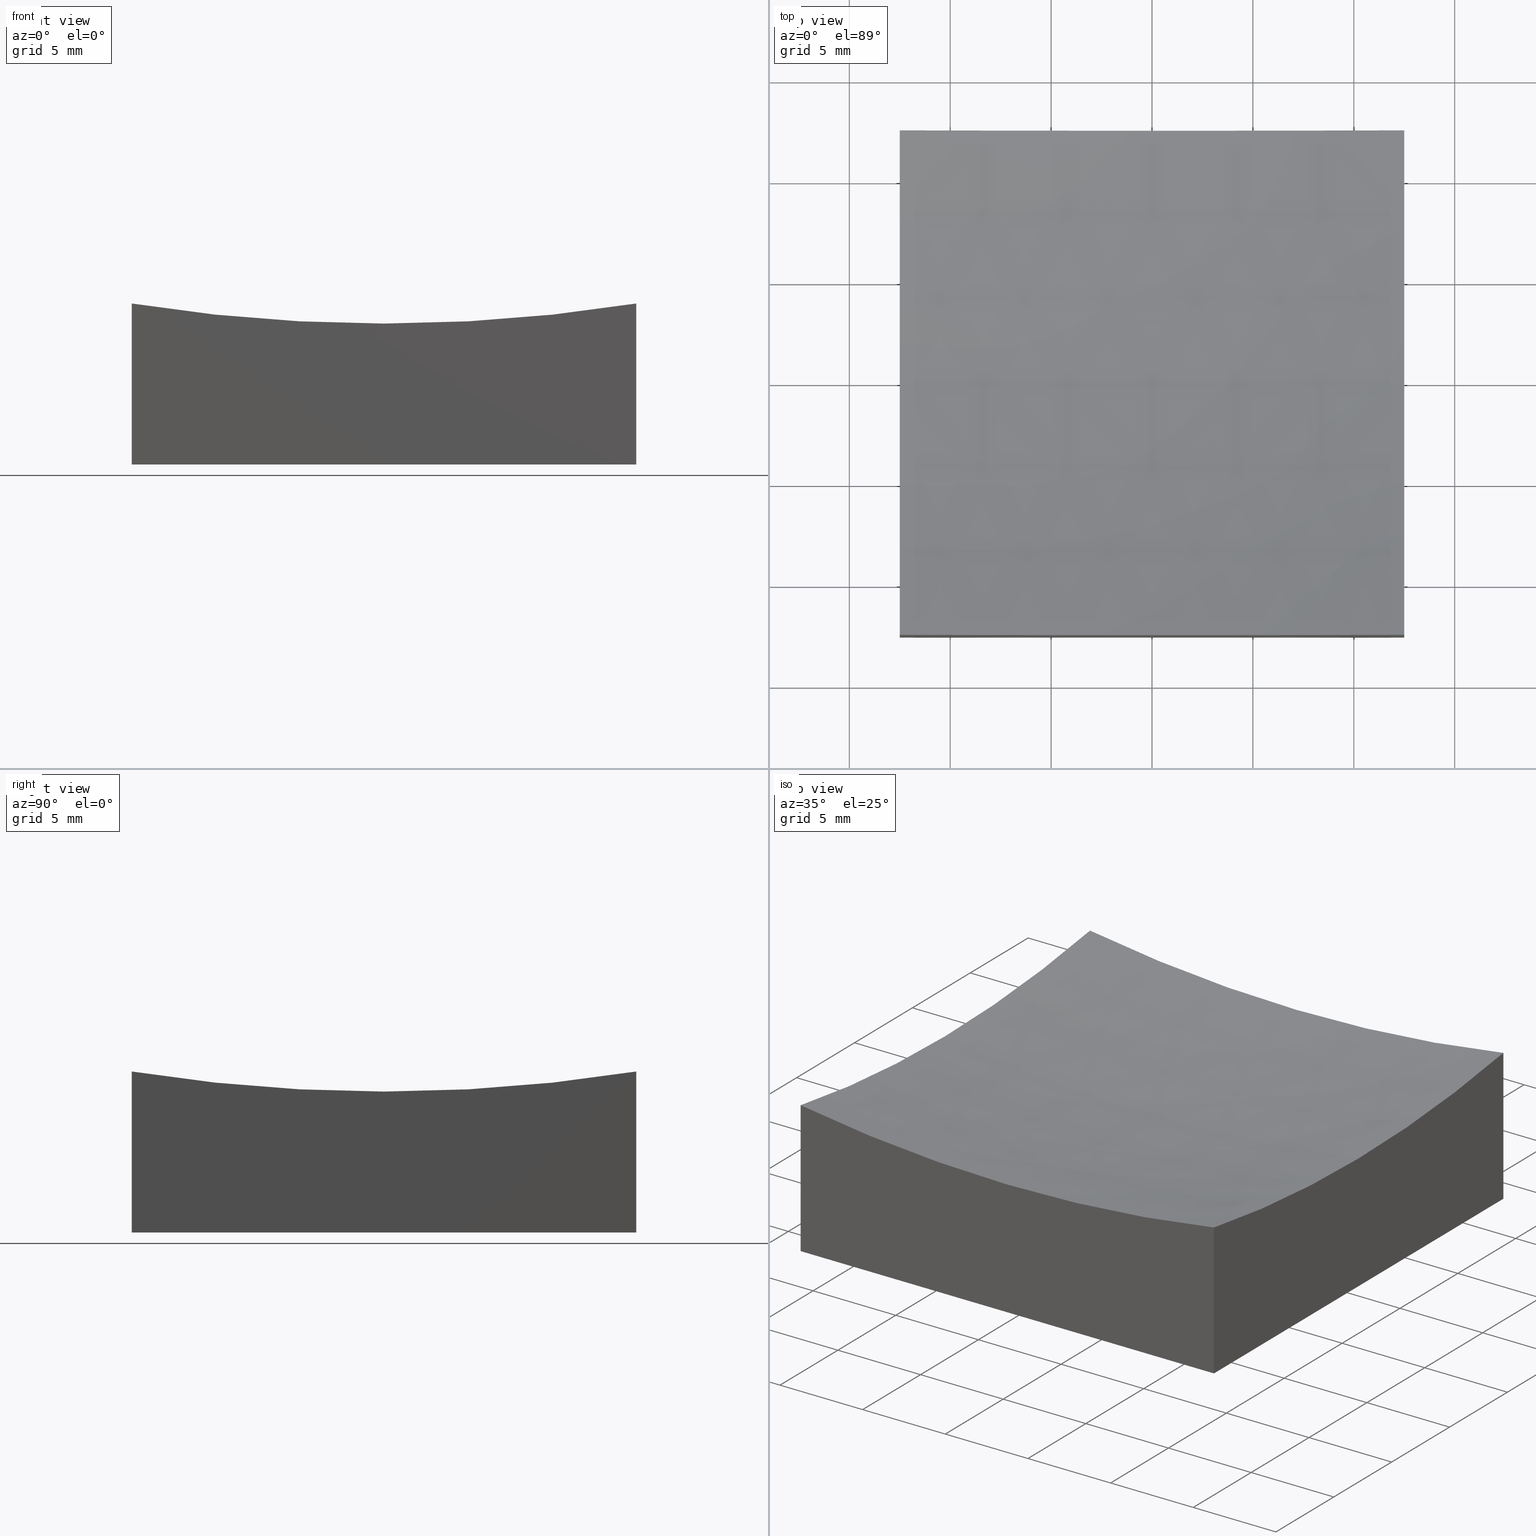
[diagram: canonical four-view strip — front | top / right | iso, engineering-drawing reading convention]
A machine part, canonical four-view strip (front | top / right | iso — engineering-drawing reading convention). The complete STEP part file that produces these views, byte-faithful:
ISO-10303-21;
HEADER;
FILE_DESCRIPTION (( 'STEP AP214' ),
    '1' );
FILE_NAME ('270035.STEP',
    '2020-06-05T06:09:34',
    ( '' ),
    ( '' ),
    'SwSTEP 2.0',
    'SolidWorks 2019',
    '' );
FILE_SCHEMA (( 'AUTOMOTIVE_DESIGN' ));
ENDSEC;

DATA;
#1 = DIRECTION ( 'NONE',  ( 1.000000000000000000, 0.0000000000000000000, 0.0000000000000000000 ) ) ;
#2 = ORIENTED_EDGE ( 'NONE', *, *, #121, .F. ) ;
#3 = ORIENTED_EDGE ( 'NONE', *, *, #33, .T. ) ;
#4 =( NAMED_UNIT ( * ) SI_UNIT ( $, .STERADIAN. ) SOLID_ANGLE_UNIT ( ) );
#5 = CARTESIAN_POINT ( 'NONE',  ( -12.50000000000000000, 12.50000000000000000, 20.00000000000000000 ) ) ;
#6 = EDGE_CURVE ( 'NONE', #189, #131, #78, .T. ) ;
#7 = CARTESIAN_POINT ( 'NONE',  ( -12.49999999999999822, -1.734723475976808278E-15, 86.00000000000000000 ) ) ;
#8 = LINE ( 'NONE', #94, #90 ) ;
#9 = AXIS2_PLACEMENT_3D ( 'NONE', #143, #224, #222 ) ;
#10 =( NAMED_UNIT ( * ) SI_UNIT ( $, .STERADIAN. ) SOLID_ANGLE_UNIT ( ) );
#11 = SPHERICAL_SURFACE ( 'NONE', #173, 80.00000000000001421 ) ;
#12 = SURFACE_SIDE_STYLE ('',( #185 ) ) ;
#13 = AXIS2_PLACEMENT_3D ( 'NONE', #113, #102, #17 ) ;
#14 = ADVANCED_BREP_SHAPE_REPRESENTATION ( '270035', ( #247, #67 ), #248 ) ;
#15 = ADVANCED_FACE ( 'NONE', ( #104 ), #62, .F. ) ;
#16 = ORIENTED_EDGE ( 'NONE', *, *, #142, .T. ) ;
#17 = DIRECTION ( 'NONE',  ( 0.0000000000000000000, 0.0000000000000000000, -1.000000000000000000 ) ) ;
#18 = ORIENTED_EDGE ( 'NONE', *, *, #180, .T. ) ;
#19 = VERTEX_POINT ( 'NONE', #85 ) ;
#20 = VECTOR ( 'NONE', #212, 1000.000000000000000 ) ;
#21 = SURFACE_STYLE_FILL_AREA ( #84 ) ;
#22 = ORIENTED_EDGE ( 'NONE', *, *, #214, .F. ) ;
#23 = DIRECTION ( 'NONE',  ( 1.000000000000000000, 0.0000000000000000000, 0.0000000000000000000 ) ) ;
#24 = DIRECTION ( 'NONE',  ( 0.0000000000000000000, 1.000000000000000000, 0.0000000000000000000 ) ) ;
#25 = STYLED_ITEM ( 'NONE', ( #178 ), #14 ) ;
#26 =( NAMED_UNIT ( * ) PLANE_ANGLE_UNIT ( ) SI_UNIT ( $, .RADIAN. ) );
#27 = DIRECTION ( 'NONE',  ( -1.317221326114363248E-16, 1.000000000000000000, 0.0000000000000000000 ) ) ;
#28 = PLANE ( 'NONE',  #160 ) ;
#29 = VECTOR ( 'NONE', #120, 1000.000000000000000 ) ;
#30 = DIRECTION ( 'NONE',  ( -0.0000000000000000000, -0.0000000000000000000, -1.000000000000000000 ) ) ;
#31 = CARTESIAN_POINT ( 'NONE',  ( 1.053196247266724167E-14, 0.0000000000000000000, 86.00000000000000000 ) ) ;
#32 = AXIS2_PLACEMENT_3D ( 'NONE', #200, #221, #27 ) ;
#33 = EDGE_CURVE ( 'NONE', #154, #36, #53, .T. ) ;
#34 = AXIS2_PLACEMENT_3D ( 'NONE', #89, #92, #147 ) ;
#35 = VECTOR ( 'NONE', #23, 1000.000000000000000 ) ;
#36 = VERTEX_POINT ( 'NONE', #162 ) ;
#37 = CARTESIAN_POINT ( 'NONE',  ( 1.053196247266724167E-14, -12.50000000000000000, 86.00000000000000000 ) ) ;
#38 = EDGE_CURVE ( 'NONE', #249, #189, #205, .T. ) ;
#39 = ORIENTED_EDGE ( 'NONE', *, *, #95, .T. ) ;
#40 = LINE ( 'NONE', #5, #111 ) ;
#41 = LINE ( 'NONE', #231, #35 ) ;
#42 = ORIENTED_EDGE ( 'NONE', *, *, #50, .T. ) ;
#43 = DIRECTION ( 'NONE',  ( 1.387778780781445676E-16, -1.000000000000000000, 0.0000000000000000000 ) ) ;
#44 = EDGE_CURVE ( 'NONE', #19, #77, #182, .T. ) ;
#45 = PRESENTATION_STYLE_ASSIGNMENT (( #218 ) ) ;
#46 = CARTESIAN_POINT ( 'NONE',  ( 12.50000000000000178, 0.0000000000000000000, 6.982596853604452036 ) ) ;
#47 = FACE_OUTER_BOUND ( 'NONE', #75, .T. ) ;
#48 = PRESENTATION_LAYER_ASSIGNMENT (  '', '', ( #105 ) ) ;
#49 = CARTESIAN_POINT ( 'NONE',  ( -12.49999999999999645, -12.50000000000000000, 0.0000000000000000000 ) ) ;
#50 = EDGE_CURVE ( 'NONE', #110, #98, #40, .T. ) ;
#51 = UNCERTAINTY_MEASURE_WITH_UNIT (LENGTH_MEASURE( 1.000000000000000082E-05 ), #122, 'distance_accuracy_value', 'NONE');
#52 = ORIENTED_EDGE ( 'NONE', *, *, #187, .F. ) ;
#53 = CIRCLE ( 'NONE', #252, 79.01740314639556573 ) ;
#54 = ORIENTED_EDGE ( 'NONE', *, *, #6, .T. ) ;
#55 = ORIENTED_EDGE ( 'NONE', *, *, #33, .F. ) ;
#56 = MECHANICAL_DESIGN_GEOMETRIC_PRESENTATION_REPRESENTATION (  '', ( #25 ), #91 ) ;
#57 = EDGE_LOOP ( 'NONE', ( #156, #174, #54, #209, #112 ) ) ;
#58 = CARTESIAN_POINT ( 'NONE',  ( 12.50000000000000000, 12.50000000000000000, 7.977567328363813104 ) ) ;
#59 = PRODUCT ( '270035', '270035', '', ( #153 ) ) ;
#60 = ORIENTED_EDGE ( 'NONE', *, *, #187, .T. ) ;
#61 = DIRECTION ( 'NONE',  ( 0.0000000000000000000, 1.000000000000000000, 0.0000000000000000000 ) ) ;
#62 = PLANE ( 'NONE',  #164 ) ;
#63 = ORIENTED_EDGE ( 'NONE', *, *, #121, .T. ) ;
#64 = FACE_OUTER_BOUND ( 'NONE', #152, .T. ) ;
#65 = DIRECTION ( 'NONE',  ( 1.000000000000000000, 0.0000000000000000000, -1.734723475976806848E-16 ) ) ;
#66 = MECHANICAL_DESIGN_GEOMETRIC_PRESENTATION_REPRESENTATION (  '', ( #105 ), #74 ) ;
#67 = AXIS2_PLACEMENT_3D ( 'NONE', #236, #103, #1 ) ;
#68 = CARTESIAN_POINT ( 'NONE',  ( 12.50000000000000355, -12.50000000000000000, 7.977567328363813104 ) ) ;
#69 =( NAMED_UNIT ( * ) PLANE_ANGLE_UNIT ( ) SI_UNIT ( $, .RADIAN. ) );
#70 = LINE ( 'NONE', #165, #226 ) ;
#71 = AXIS2_PLACEMENT_3D ( 'NONE', #243, #144, #166 ) ;
#72 = ORIENTED_EDGE ( 'NONE', *, *, #196, .T. ) ;
#73 = EDGE_CURVE ( 'NONE', #249, #114, #150, .T. ) ;
#74 =( GEOMETRIC_REPRESENTATION_CONTEXT ( 3 ) GLOBAL_UNCERTAINTY_ASSIGNED_CONTEXT ( ( #51 ) ) GLOBAL_UNIT_ASSIGNED_CONTEXT ( ( #122, #26, #10 ) ) REPRESENTATION_CONTEXT ( 'NONE', 'WORKASPACE' ) );
#75 = EDGE_LOOP ( 'NONE', ( #207, #76, #172, #228 ) ) ;
#76 = ORIENTED_EDGE ( 'NONE', *, *, #44, .T. ) ;
#77 = VERTEX_POINT ( 'NONE', #139 ) ;
#78 = CIRCLE ( 'NONE', #123, 79.01740314639556573 ) ;
#79 = CARTESIAN_POINT ( 'NONE',  ( 1.053196247266724167E-14, 0.0000000000000000000, 86.00000000000000000 ) ) ;
#80 = APPLICATION_PROTOCOL_DEFINITION ( 'draft international standard', 'automotive_design', 1998, #168 ) ;
#81 = EDGE_LOOP ( 'NONE', ( #52, #18, #16, #42, #72 ) ) ;
#82 = CARTESIAN_POINT ( 'NONE',  ( -12.50000000000000000, 12.50000000000000000, 0.0000000000000000000 ) ) ;
#83 = DIRECTION ( 'NONE',  ( 1.000000000000000000, 1.387778780781445676E-16, -0.0000000000000000000 ) ) ;
#84 = FILL_AREA_STYLE ('',( #101 ) ) ;
#85 = CARTESIAN_POINT ( 'NONE',  ( 12.50000000000000000, 12.50000000000000000, 0.0000000000000000000 ) ) ;
#86 = CARTESIAN_POINT ( 'NONE',  ( -12.50000000000000000, 12.50000000000000000, 20.00000000000000000 ) ) ;
#87 = CARTESIAN_POINT ( 'NONE',  ( 3.458540119970568356E-15, 0.0000000000000000000, 5.999999999999991118 ) ) ;
#88 = EDGE_CURVE ( 'NONE', #98, #19, #240, .T. ) ;
#89 = CARTESIAN_POINT ( 'NONE',  ( 12.50000000000000178, 1.734723475976805911E-15, 86.00000000000000000 ) ) ;
#90 = VECTOR ( 'NONE', #30, 1000.000000000000000 ) ;
#91 =( GEOMETRIC_REPRESENTATION_CONTEXT ( 3 ) GLOBAL_UNCERTAINTY_ASSIGNED_CONTEXT ( ( #204 ) ) GLOBAL_UNIT_ASSIGNED_CONTEXT ( ( #176, #118, #4 ) ) REPRESENTATION_CONTEXT ( 'NONE', 'WORKASPACE' ) );
#92 = DIRECTION ( 'NONE',  ( 1.000000000000000000, 1.387778780781445676E-16, -0.0000000000000000000 ) ) ;
#93 = ADVANCED_FACE ( 'NONE', ( #197 ), #157, .F. ) ;
#94 = CARTESIAN_POINT ( 'NONE',  ( -12.49999999999999645, -12.50000000000000000, 20.00000000000000000 ) ) ;
#95 = EDGE_CURVE ( 'NONE', #131, #19, #99, .T. ) ;
#96 = EDGE_LOOP ( 'NONE', ( #22, #63, #133, #141, #171 ) ) ;
#97 = DIRECTION ( 'NONE',  ( -1.317221326114363248E-16, 1.000000000000000000, 0.0000000000000000000 ) ) ;
#98 = VERTEX_POINT ( 'NONE', #215 ) ;
#99 = LINE ( 'NONE', #192, #109 ) ;
#100 = CARTESIAN_POINT ( 'NONE',  ( 12.50000000000000000, 12.50000000000000000, 0.0000000000000000000 ) ) ;
#101 = FILL_AREA_STYLE_COLOUR ( '', #132 ) ;
#102 = DIRECTION ( 'NONE',  ( 0.0000000000000000000, -1.000000000000000000, -0.0000000000000000000 ) ) ;
#103 = DIRECTION ( 'NONE',  ( 0.0000000000000000000, 0.0000000000000000000, 1.000000000000000000 ) ) ;
#104 = FACE_OUTER_BOUND ( 'NONE', #81, .T. ) ;
#105 = STYLED_ITEM ( 'NONE', ( #45 ), #247 ) ;
#106 = DIRECTION ( 'NONE',  ( 1.000000000000000000, 1.387778780781445676E-16, -0.0000000000000000000 ) ) ;
#107 = FACE_OUTER_BOUND ( 'NONE', #57, .T. ) ;
#108 = FILL_AREA_STYLE ('',( #183 ) ) ;
#109 = VECTOR ( 'NONE', #238, 1000.000000000000000 ) ;
#110 = VERTEX_POINT ( 'NONE', #119 ) ;
#111 = VECTOR ( 'NONE', #234, 1000.000000000000000 ) ;
#112 = ORIENTED_EDGE ( 'NONE', *, *, #142, .F. ) ;
#113 = CARTESIAN_POINT ( 'NONE',  ( 1.053196247266724167E-14, 0.0000000000000000000, 86.00000000000000000 ) ) ;
#114 = VERTEX_POINT ( 'NONE', #161 ) ;
#115 = CARTESIAN_POINT ( 'NONE',  ( -12.50000000000000000, 12.50000000000000000, 20.00000000000000000 ) ) ;
#116 = CIRCLE ( 'NONE', #9, 79.01740314639556573 ) ;
#117 = DIRECTION ( 'NONE',  ( 0.0000000000000000000, 1.000000000000000000, 0.0000000000000000000 ) ) ;
#118 =( NAMED_UNIT ( * ) PLANE_ANGLE_UNIT ( ) SI_UNIT ( $, .RADIAN. ) );
#119 = CARTESIAN_POINT ( 'NONE',  ( -12.50000000000000000, 12.50000000000000000, 7.977567328363813104 ) ) ;
#120 = DIRECTION ( 'NONE',  ( 1.000000000000000000, 0.0000000000000000000, 0.0000000000000000000 ) ) ;
#121 = EDGE_CURVE ( 'NONE', #154, #77, #134, .T. ) ;
#122 =( LENGTH_UNIT ( ) NAMED_UNIT ( * ) SI_UNIT ( .MILLI., .METRE. ) );
#123 = AXIS2_PLACEMENT_3D ( 'NONE', #217, #251, #97 ) ;
#124 = FACE_OUTER_BOUND ( 'NONE', #96, .T. ) ;
#125 = CARTESIAN_POINT ( 'NONE',  ( 0.0000000000000000000, 0.0000000000000000000, 0.0000000000000000000 ) ) ;
#126 = PLANE ( 'NONE',  #206 ) ;
#127 = CLOSED_SHELL ( 'NONE', ( #93, #151, #15, #184, #241, #235, #188 ) ) ;
#128 = DIRECTION ( 'NONE',  ( 0.0000000000000000000, 0.0000000000000000000, -1.000000000000000000 ) ) ;
#129 = EDGE_CURVE ( 'NONE', #233, #77, #41, .T. ) ;
#130 = ORIENTED_EDGE ( 'NONE', *, *, #180, .F. ) ;
#131 = VERTEX_POINT ( 'NONE', #58 ) ;
#132 = COLOUR_RGB ( '',1.000000000000000000, 1.000000000000000000, 1.000000000000000000 ) ;
#133 = ORIENTED_EDGE ( 'NONE', *, *, #44, .F. ) ;
#134 = LINE ( 'NONE', #175, #20 ) ;
#135 = EDGE_LOOP ( 'NONE', ( #169, #39, #229, #211 ) ) ;
#136 = DIRECTION ( 'NONE',  ( 1.000000000000000000, 1.387778780781445676E-16, -0.0000000000000000000 ) ) ;
#137 = EDGE_LOOP ( 'NONE', ( #250, #170, #130, #55, #191 ) ) ;
#138 = DIRECTION ( 'NONE',  ( 1.000000000000000000, 0.0000000000000000000, -1.734723475976806848E-16 ) ) ;
#139 = CARTESIAN_POINT ( 'NONE',  ( 12.50000000000000355, -12.50000000000000000, 0.0000000000000000000 ) ) ;
#140 = SHAPE_DEFINITION_REPRESENTATION ( #242, #14 ) ;
#141 = ORIENTED_EDGE ( 'NONE', *, *, #95, .F. ) ;
#142 = EDGE_CURVE ( 'NONE', #114, #110, #145, .T. ) ;
#143 = CARTESIAN_POINT ( 'NONE',  ( 1.053196247266724167E-14, 12.50000000000000000, 86.00000000000000000 ) ) ;
#144 = DIRECTION ( 'NONE',  ( 0.0000000000000000000, 1.000000000000000000, 0.0000000000000000000 ) ) ;
#145 = CIRCLE ( 'NONE', #181, 79.01740314639556573 ) ;
#146 = DIRECTION ( 'NONE',  ( -1.000000000000000000, 0.0000000000000000000, -0.0000000000000000000 ) ) ;
#147 = DIRECTION ( 'NONE',  ( -1.317221326114363248E-16, 1.000000000000000000, 0.0000000000000000000 ) ) ;
#148 = AXIS2_PLACEMENT_3D ( 'NONE', #158, #24, #138 ) ;
#149 = UNCERTAINTY_MEASURE_WITH_UNIT (LENGTH_MEASURE( 1.000000000000000082E-05 ), #163, 'distance_accuracy_value', 'NONE');
#150 = CIRCLE ( 'NONE', #220, 80.00000000000001421 ) ;
#151 = ADVANCED_FACE ( 'NONE', ( #179 ), #239, .T. ) ;
#152 = EDGE_LOOP ( 'NONE', ( #2, #3, #60, #230 ) ) ;
#153 = PRODUCT_CONTEXT ( 'NONE', #168, 'mechanical' ) ;
#154 = VERTEX_POINT ( 'NONE', #68 ) ;
#155 = PRODUCT_DEFINITION ( 'δ֪', '', #227, #246 ) ;
#156 = ORIENTED_EDGE ( 'NONE', *, *, #73, .F. ) ;
#157 = SPHERICAL_SURFACE ( 'NONE', #148, 80.00000000000001421 ) ;
#158 = CARTESIAN_POINT ( 'NONE',  ( 1.053196247266724167E-14, 0.0000000000000000000, 86.00000000000000000 ) ) ;
#159 =( NAMED_UNIT ( * ) SI_UNIT ( $, .STERADIAN. ) SOLID_ANGLE_UNIT ( ) );
#160 = AXIS2_PLACEMENT_3D ( 'NONE', #202, #106, #199 ) ;
#161 = CARTESIAN_POINT ( 'NONE',  ( -12.49999999999999645, 1.530808498934191127E-15, 6.982596853604452036 ) ) ;
#162 = CARTESIAN_POINT ( 'NONE',  ( -12.49999999999999645, -12.50000000000000000, 7.977567328363813104 ) ) ;
#163 =( LENGTH_UNIT ( ) NAMED_UNIT ( * ) SI_UNIT ( .MILLI., .METRE. ) );
#164 = AXIS2_PLACEMENT_3D ( 'NONE', #115, #83, #195 ) ;
#165 = CARTESIAN_POINT ( 'NONE',  ( -12.50000000000000000, 12.50000000000000000, 0.0000000000000000000 ) ) ;
#166 = DIRECTION ( 'NONE',  ( 0.0000000000000000000, -0.0000000000000000000, 1.000000000000000000 ) ) ;
#167 = PRESENTATION_LAYER_ASSIGNMENT (  '', '', ( #25 ) ) ;
#168 = APPLICATION_CONTEXT ( 'automotive_design' ) ;
#169 = ORIENTED_EDGE ( 'NONE', *, *, #219, .F. ) ;
#170 = ORIENTED_EDGE ( 'NONE', *, *, #73, .T. ) ;
#171 = ORIENTED_EDGE ( 'NONE', *, *, #6, .F. ) ;
#172 = ORIENTED_EDGE ( 'NONE', *, *, #129, .F. ) ;
#173 = AXIS2_PLACEMENT_3D ( 'NONE', #31, #223, #65 ) ;
#174 = ORIENTED_EDGE ( 'NONE', *, *, #38, .T. ) ;
#175 = CARTESIAN_POINT ( 'NONE',  ( 12.50000000000000355, -12.50000000000000000, 20.00000000000000000 ) ) ;
#176 =( LENGTH_UNIT ( ) NAMED_UNIT ( * ) SI_UNIT ( .MILLI., .METRE. ) );
#177 = DIRECTION ( 'NONE',  ( -1.000000000000000000, 1.224646799147353207E-16, 0.0000000000000000000 ) ) ;
#178 = PRESENTATION_STYLE_ASSIGNMENT (( #216 ) ) ;
#179 = FACE_OUTER_BOUND ( 'NONE', #135, .T. ) ;
#180 = EDGE_CURVE ( 'NONE', #36, #114, #193, .T. ) ;
#181 = AXIS2_PLACEMENT_3D ( 'NONE', #7, #136, #210 ) ;
#182 = LINE ( 'NONE', #100, #225 ) ;
#183 = FILL_AREA_STYLE_COLOUR ( '', #213 ) ;
#184 = ADVANCED_FACE ( 'NONE', ( #64 ), #245, .F. ) ;
#185 = SURFACE_STYLE_FILL_AREA ( #108 ) ;
#186 = APPLICATION_CONTEXT ( 'automotive_design' ) ;
#187 = EDGE_CURVE ( 'NONE', #36, #233, #8, .T. ) ;
#188 = ADVANCED_FACE ( 'NONE', ( #107 ), #11, .F. ) ;
#189 = VERTEX_POINT ( 'NONE', #46 ) ;
#190 = DIRECTION ( 'NONE',  ( 1.224646799147353207E-16, 1.000000000000000000, -1.832685396736843925E-32 ) ) ;
#191 = ORIENTED_EDGE ( 'NONE', *, *, #214, .T. ) ;
#192 = CARTESIAN_POINT ( 'NONE',  ( 12.50000000000000000, 12.50000000000000000, 20.00000000000000000 ) ) ;
#193 = CIRCLE ( 'NONE', #32, 79.01740314639556573 ) ;
#194 = DIRECTION ( 'NONE',  ( 0.0000000000000000000, -0.0000000000000000000, 1.000000000000000000 ) ) ;
#195 = DIRECTION ( 'NONE',  ( -1.387778780781445676E-16, 1.000000000000000000, 0.0000000000000000000 ) ) ;
#196 = EDGE_CURVE ( 'NONE', #98, #233, #70, .T. ) ;
#197 = FACE_OUTER_BOUND ( 'NONE', #137, .T. ) ;
#198 = AXIS2_PLACEMENT_3D ( 'NONE', #86, #117, #194 ) ;
#199 = DIRECTION ( 'NONE',  ( -1.387778780781445676E-16, 1.000000000000000000, 0.0000000000000000000 ) ) ;
#200 = CARTESIAN_POINT ( 'NONE',  ( -12.49999999999999822, -1.734723475976808278E-15, 86.00000000000000000 ) ) ;
#201 = CIRCLE ( 'NONE', #34, 79.01740314639556573 ) ;
#202 = CARTESIAN_POINT ( 'NONE',  ( 12.50000000000000000, 12.50000000000000000, 20.00000000000000000 ) ) ;
#203 = PRODUCT_RELATED_PRODUCT_CATEGORY ( 'part', '', ( #59 ) ) ;
#204 = UNCERTAINTY_MEASURE_WITH_UNIT (LENGTH_MEASURE( 1.000000000000000082E-05 ), #176, 'distance_accuracy_value', 'NONE');
#205 = CIRCLE ( 'NONE', #13, 80.00000000000001421 ) ;
#206 = AXIS2_PLACEMENT_3D ( 'NONE', #125, #128, #146 ) ;
#207 = ORIENTED_EDGE ( 'NONE', *, *, #88, .T. ) ;
#208 = DIRECTION ( 'NONE',  ( 0.0000000000000000000, 0.0000000000000000000, 1.000000000000000000 ) ) ;
#209 = ORIENTED_EDGE ( 'NONE', *, *, #219, .T. ) ;
#210 = DIRECTION ( 'NONE',  ( -1.317221326114363248E-16, 1.000000000000000000, 0.0000000000000000000 ) ) ;
#211 = ORIENTED_EDGE ( 'NONE', *, *, #50, .F. ) ;
#212 = DIRECTION ( 'NONE',  ( -0.0000000000000000000, -0.0000000000000000000, -1.000000000000000000 ) ) ;
#213 = COLOUR_RGB ( '',1.000000000000000000, 1.000000000000000000, 1.000000000000000000 ) ;
#214 = EDGE_CURVE ( 'NONE', #154, #189, #201, .T. ) ;
#215 = CARTESIAN_POINT ( 'NONE',  ( -12.50000000000000000, 12.50000000000000000, 0.0000000000000000000 ) ) ;
#216 = SURFACE_STYLE_USAGE ( .BOTH. , #237 ) ;
#217 = CARTESIAN_POINT ( 'NONE',  ( 12.50000000000000178, 1.734723475976805911E-15, 86.00000000000000000 ) ) ;
#218 = SURFACE_STYLE_USAGE ( .BOTH. , #12 ) ;
#219 = EDGE_CURVE ( 'NONE', #131, #110, #116, .T. ) ;
#220 = AXIS2_PLACEMENT_3D ( 'NONE', #79, #190, #177 ) ;
#221 = DIRECTION ( 'NONE',  ( 1.000000000000000000, 1.387778780781445676E-16, -0.0000000000000000000 ) ) ;
#222 = DIRECTION ( 'NONE',  ( 0.0000000000000000000, 0.0000000000000000000, 1.000000000000000000 ) ) ;
#223 = DIRECTION ( 'NONE',  ( 0.0000000000000000000, 1.000000000000000000, 0.0000000000000000000 ) ) ;
#224 = DIRECTION ( 'NONE',  ( 0.0000000000000000000, 1.000000000000000000, 0.0000000000000000000 ) ) ;
#225 = VECTOR ( 'NONE', #43, 1000.000000000000000 ) ;
#226 = VECTOR ( 'NONE', #244, 1000.000000000000000 ) ;
#227 = PRODUCT_DEFINITION_FORMATION_WITH_SPECIFIED_SOURCE ( '�κ�', '', #59, .NOT_KNOWN. ) ;
#228 = ORIENTED_EDGE ( 'NONE', *, *, #196, .F. ) ;
#229 = ORIENTED_EDGE ( 'NONE', *, *, #88, .F. ) ;
#230 = ORIENTED_EDGE ( 'NONE', *, *, #129, .T. ) ;
#231 = CARTESIAN_POINT ( 'NONE',  ( -12.49999999999999645, -12.50000000000000000, 0.0000000000000000000 ) ) ;
#232 = APPLICATION_PROTOCOL_DEFINITION ( 'draft international standard', 'automotive_design', 1998, #186 ) ;
#233 = VERTEX_POINT ( 'NONE', #49 ) ;
#234 = DIRECTION ( 'NONE',  ( -0.0000000000000000000, -0.0000000000000000000, -1.000000000000000000 ) ) ;
#235 = ADVANCED_FACE ( 'NONE', ( #47 ), #126, .T. ) ;
#236 = CARTESIAN_POINT ( 'NONE',  ( 0.0000000000000000000, 0.0000000000000000000, 0.0000000000000000000 ) ) ;
#237 = SURFACE_SIDE_STYLE ('',( #21 ) ) ;
#238 = DIRECTION ( 'NONE',  ( -0.0000000000000000000, -0.0000000000000000000, -1.000000000000000000 ) ) ;
#239 = PLANE ( 'NONE',  #198 ) ;
#240 = LINE ( 'NONE', #82, #29 ) ;
#241 = ADVANCED_FACE ( 'NONE', ( #124 ), #28, .T. ) ;
#242 = PRODUCT_DEFINITION_SHAPE ( 'NONE', 'NONE',  #155 ) ;
#243 = CARTESIAN_POINT ( 'NONE',  ( -12.49999999999999645, -12.50000000000000000, 20.00000000000000000 ) ) ;
#244 = DIRECTION ( 'NONE',  ( 1.387778780781445676E-16, -1.000000000000000000, 0.0000000000000000000 ) ) ;
#245 = PLANE ( 'NONE',  #71 ) ;
#246 = PRODUCT_DEFINITION_CONTEXT ( 'detailed design', #186, 'design' ) ;
#247 = MANIFOLD_SOLID_BREP ( '�г�-��ת2', #127 ) ;
#248 =( GEOMETRIC_REPRESENTATION_CONTEXT ( 3 ) GLOBAL_UNCERTAINTY_ASSIGNED_CONTEXT ( ( #149 ) ) GLOBAL_UNIT_ASSIGNED_CONTEXT ( ( #163, #69, #159 ) ) REPRESENTATION_CONTEXT ( 'NONE', 'WORKASPACE' ) );
#249 = VERTEX_POINT ( 'NONE', #87 ) ;
#250 = ORIENTED_EDGE ( 'NONE', *, *, #38, .F. ) ;
#251 = DIRECTION ( 'NONE',  ( 1.000000000000000000, 1.387778780781445676E-16, -0.0000000000000000000 ) ) ;
#252 = AXIS2_PLACEMENT_3D ( 'NONE', #37, #61, #208 ) ;
ENDSEC;
END-ISO-10303-21;
